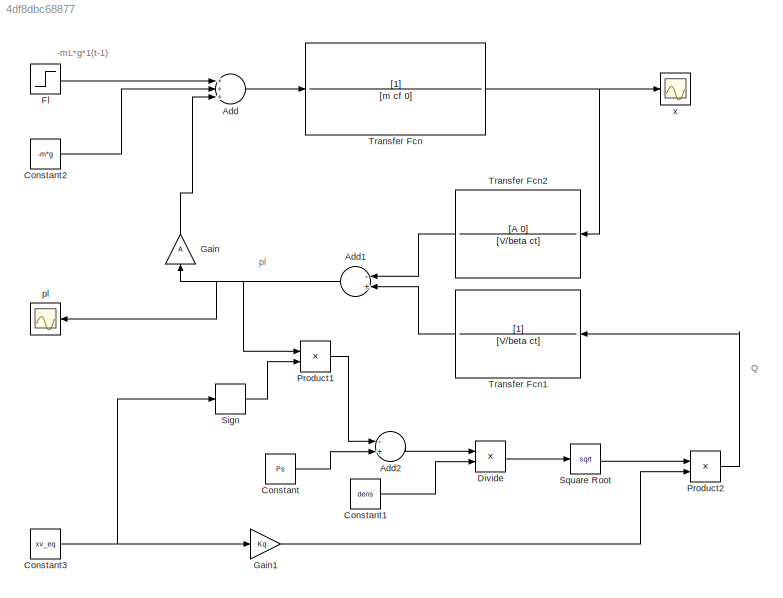
MODEL slx_4df8dbc68877
KIND model
CONFIG AbsTol = auto
CONFIG EnableMultiTasking = off
CONFIG FixedStep = auto
CONFIG MaxStep = auto
CONFIG MinStep = auto
CONFIG RelTol = 1e-3
CONFIG SampleTimeConstraint = Unconstrained
CONFIG Solver = VariableStepAuto
CONFIG SolverName = VariableStepAuto
CONFIG StartTime = 0.0
CONFIG StopTime = 6
BLOCK [Sum] Add
  InputSameDT = off
  Inputs = +++
  OutDataTypeStr = Inherit: Inherit via internal rule
  Ports = [3, 1]
  SaturateOnIntegerOverflow = off
BLOCK [Sum] Add1
  InputSameDT = off
  Inputs = -+
  OutDataTypeStr = Inherit: Inherit via internal rule
  Ports = [2, 1]
  SaturateOnIntegerOverflow = off
BLOCK [Sum] Add2
  InputSameDT = off
  Inputs = -+
  OutDataTypeStr = Inherit: Inherit via internal rule
  Ports = [2, 1]
  SaturateOnIntegerOverflow = off
BLOCK [Constant] Constant
  Value = Ps
BLOCK [Constant] Constant1
  Value = dens
BLOCK [Constant] Constant2
  Value = -m*g
BLOCK [Constant] Constant3
  Value = xv_eq
BLOCK [Product] Divide
  InputSameDT = off
  Inputs = */
  OutDataTypeStr = Inherit: Inherit via internal rule
  Ports = [2, 1]
  RndMeth = Floor
  SaturateOnIntegerOverflow = off
BLOCK [Step] Fl
  After = 0
  Before = -mL*g
  SampleTime = 0
BLOCK [Gain] Gain
  Gain = A
  OutDataTypeStr = Inherit: Inherit via internal rule
  ParamDataTypeStr = Inherit: Inherit via internal rule
  SaturateOnIntegerOverflow = off
BLOCK [Gain] Gain1
  Gain = Kq
  OutDataTypeStr = Inherit: Inherit via internal rule
  ParamDataTypeStr = Inherit: Inherit via internal rule
  SaturateOnIntegerOverflow = off
BLOCK [Product] Product1
  InputSameDT = off
  OutDataTypeStr = Inherit: Inherit via internal rule
  Ports = [2, 1]
  RndMeth = Floor
  SaturateOnIntegerOverflow = off
BLOCK [Product] Product2
  InputSameDT = off
  OutDataTypeStr = Inherit: Inherit via internal rule
  Ports = [2, 1]
  RndMeth = Floor
  SaturateOnIntegerOverflow = off
BLOCK [Signum] Sign
BLOCK [Sqrt] Square Root
BLOCK [TransferFcn] Transfer Fcn
  Denominator = [m cf 0]
BLOCK [TransferFcn] Transfer Fcn1
  Denominator = [V/beta ct]
BLOCK [TransferFcn] Transfer Fcn2
  Denominator = [V/beta ct]
  Numerator = [A 0]
BLOCK [Scope] pl
  Floating = off
  NumInputPorts = 1
  Ports = [1]
  ScopeSpecificationString = Simulink.scopes.TimeScopeBlockCfg('CurrentConfiguration', extmgr.ConfigurationSet(extmgr.Configuration('Core','General UI',true),extmgr.Configuration('Core','Source UI',true),extmgr.Configuration('Sources','WiredSimulink',true,'DataLoggingVariableName','ScopeData1'),extmgr.Configuration('Visuals','Time Domain',true,'SerializedDisplays',{struct('MinYLimReal','-746853.3381','MaxYLimReal','2981033.58...<+1458ch>
BLOCK [Scope] x
  Floating = off
  NumInputPorts = 1
  Ports = [1]
  ScopeSpecificationString = Simulink.scopes.TimeScopeBlockCfg('CurrentConfiguration', extmgr.ConfigurationSet(extmgr.Configuration('Core','General UI',true),extmgr.Configuration('Core','Source UI',true),extmgr.Configuration('Sources','WiredSimulink',true,'DataLogging',true,'DataLoggingVariableName','x','DataLoggingSaveFormat','StructureWithTime'),extmgr.Configuration('Visuals','Time Domain',true,'SerializedDisplays',{struct(...<+1478ch>
ANNOTATION (root): -mL*g*1(t-1)
ANNOTATION (root): Q
ANNOTATION (root): pl
NET Add1:1 -> Gain:1, Product1:1, pl:1
LINE Add2:1 -> Divide:1
LINE Add:1 -> Transfer Fcn:1
LINE Constant1:1 -> Divide:2
LINE Constant2:1 -> Add:2
NET Constant3:1 -> Gain1:1, Sign:1
LINE Constant:1 -> Add2:2
LINE Divide:1 -> Square Root:1
LINE Fl:1 -> Add:1
LINE Gain1:1 -> Product2:2
LINE Gain:1 -> Add:3
LINE Product1:1 -> Add2:1
LINE Product2:1 -> Transfer Fcn1:1
LINE Sign:1 -> Product1:2
LINE Square Root:1 -> Product2:1
LINE Transfer Fcn1:1 -> Add1:2
LINE Transfer Fcn2:1 -> Add1:1
NET Transfer Fcn:1 -> Transfer Fcn2:1, x:1
note: NET lines group one-source signal fan-out (src -> all destinations, sorted); 1:1 wires keep LINE
